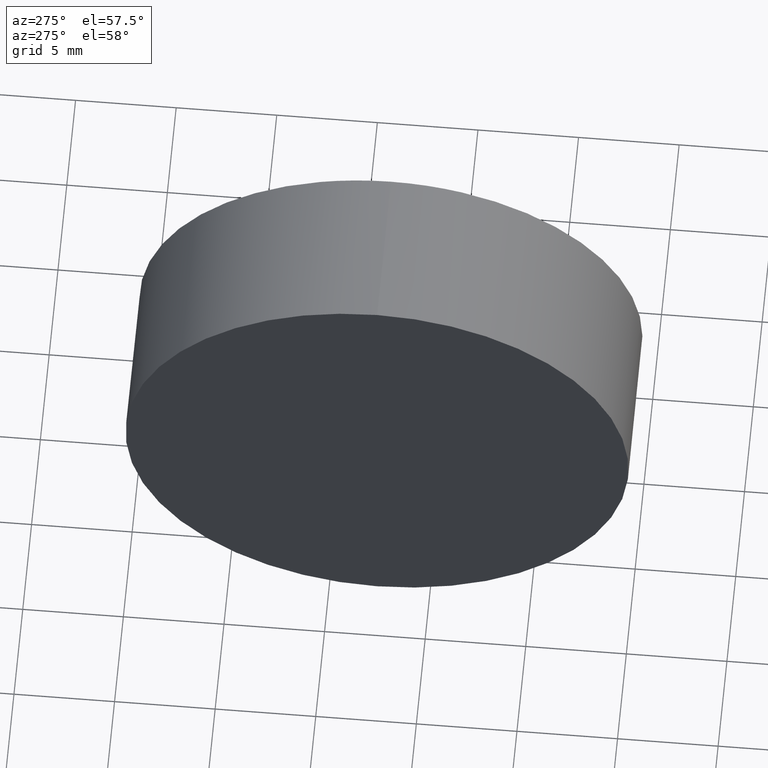
[diagram: clean part render]
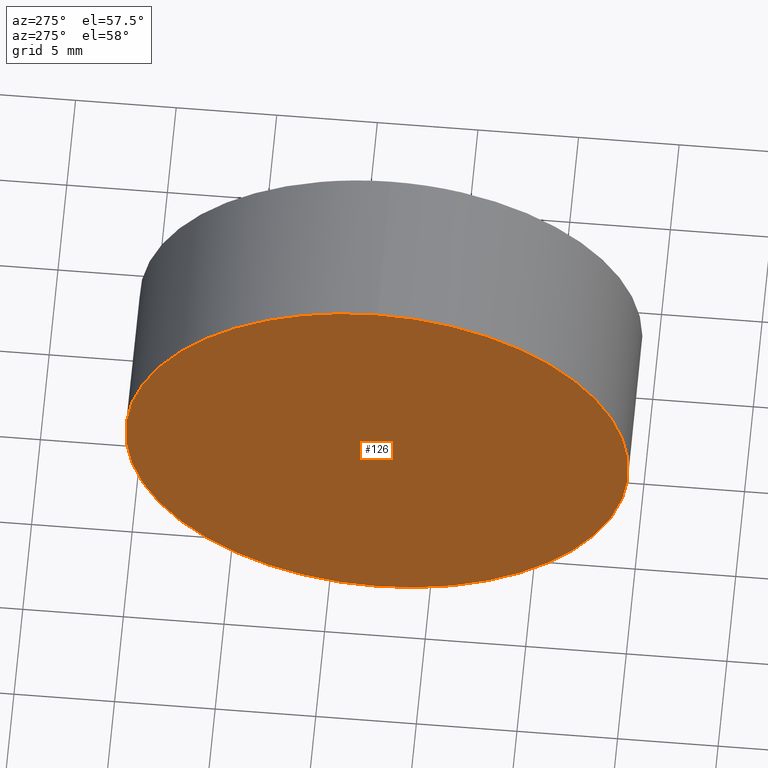
[diagram: same view with one face highlighted and labeled with its STEP entity id]
A machine part, auxiliary view. The second image highlights one B-rep face of the part: STEP entity #126.
In plain terms, the highlighted planar face has unit normal (1, 0, 0).
Its self-contained STEP definition (entity closure, byte-faithful):
#1 = CARTESIAN_POINT ( 'NONE',  ( 57.53233705252611700, 32.61076812922678400, -12.49999999999999600 ) ) ;
#5 = CIRCLE ( 'NONE', #91, 12.49999999999999600 ) ;
#7 = CARTESIAN_POINT ( 'NONE',  ( 57.53233705252611700, 32.61076812922678400, 0.0000000000000000000 ) ) ;
#19 = VERTEX_POINT ( 'NONE', #1 ) ;
#24 = EDGE_LOOP ( 'NONE', ( #36, #95 ) ) ;
#27 = DIRECTION ( 'NONE',  ( -1.000000000000000000, -0.0000000000000000000, -0.0000000000000000000 ) ) ;
#35 = AXIS2_PLACEMENT_3D ( 'NONE', #165, #97, #179 ) ;
#36 = ORIENTED_EDGE ( 'NONE', *, *, #142, .T. ) ;
#42 = EDGE_CURVE ( 'NONE', #19, #90, #5, .T. ) ;
#62 = DIRECTION ( 'NONE',  ( 0.0000000000000000000, 0.0000000000000000000, 1.000000000000000000 ) ) ;
#71 = CARTESIAN_POINT ( 'NONE',  ( 57.53233705252611700, 32.61076812922678400, 0.0000000000000000000 ) ) ;
#77 = PLANE ( 'NONE',  #35 ) ;
#90 = VERTEX_POINT ( 'NONE', #108 ) ;
#91 = AXIS2_PLACEMENT_3D ( 'NONE', #71, #102, #158 ) ;
#95 = ORIENTED_EDGE ( 'NONE', *, *, #42, .T. ) ;
#97 = DIRECTION ( 'NONE',  ( 1.000000000000000000, 0.0000000000000000000, 0.0000000000000000000 ) ) ;
#102 = DIRECTION ( 'NONE',  ( -1.000000000000000000, -0.0000000000000000000, -0.0000000000000000000 ) ) ;
#105 = AXIS2_PLACEMENT_3D ( 'NONE', #7, #27, #62 ) ;
#108 = CARTESIAN_POINT ( 'NONE',  ( 57.53233705252611700, 32.61076812922678400, 12.49999999999999600 ) ) ;
#116 = FACE_OUTER_BOUND ( 'NONE', #24, .T. ) ;
#126 = ADVANCED_FACE ( 'NONE', ( #116 ), #77, .F. ) ;
#142 = EDGE_CURVE ( 'NONE', #90, #19, #150, .T. ) ;
#150 = CIRCLE ( 'NONE', #105, 12.49999999999999600 ) ;
#158 = DIRECTION ( 'NONE',  ( 0.0000000000000000000, 0.0000000000000000000, 1.000000000000000000 ) ) ;
#165 = CARTESIAN_POINT ( 'NONE',  ( 57.53233705252611700, 32.61076812922678400, 0.0000000000000000000 ) ) ;
#179 = DIRECTION ( 'NONE',  ( 0.0000000000000000000, 0.0000000000000000000, -1.000000000000000000 ) ) ;